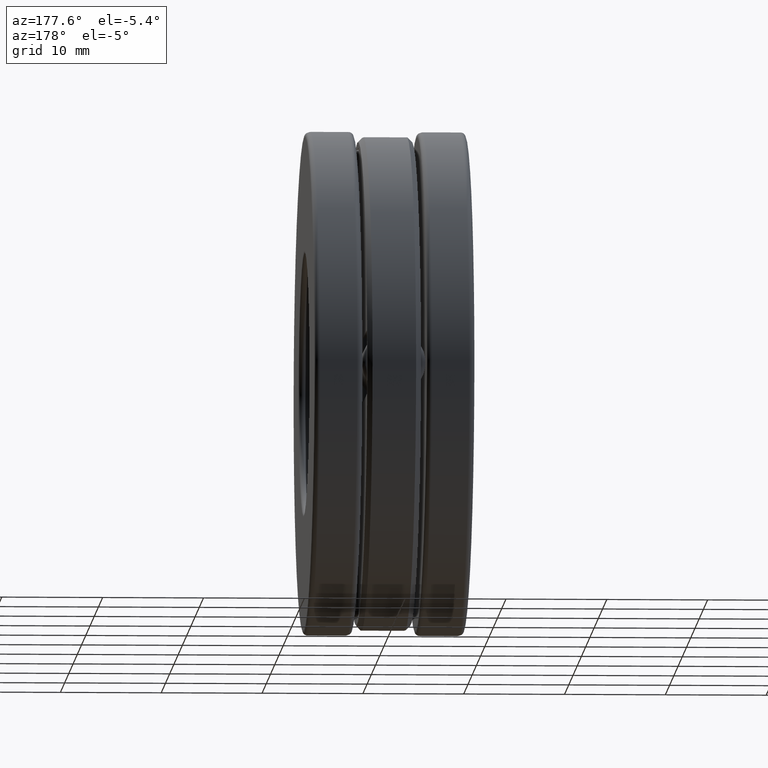
[diagram: clean part render]
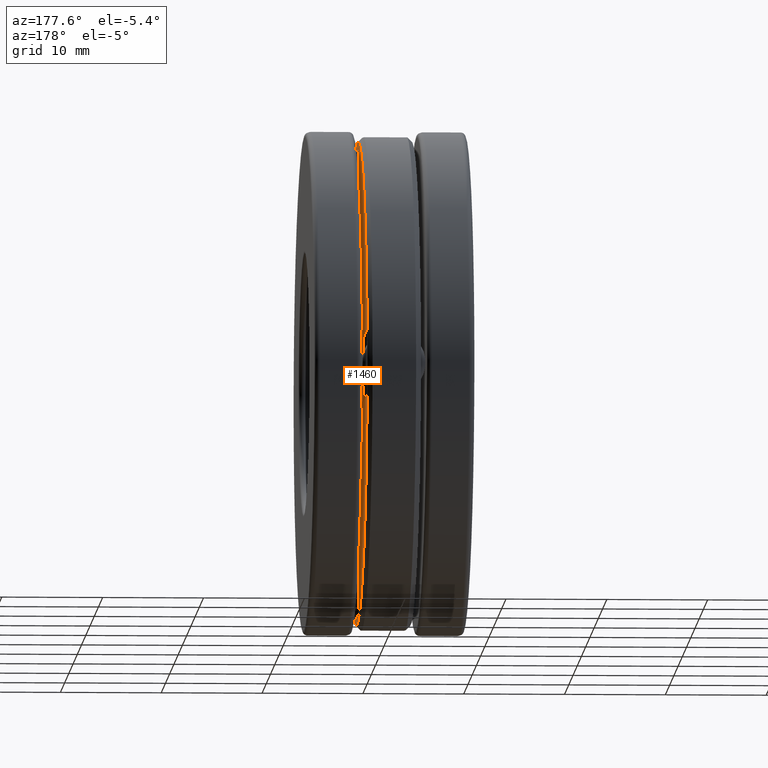
[diagram: same view with one face highlighted and labeled with its STEP entity id]
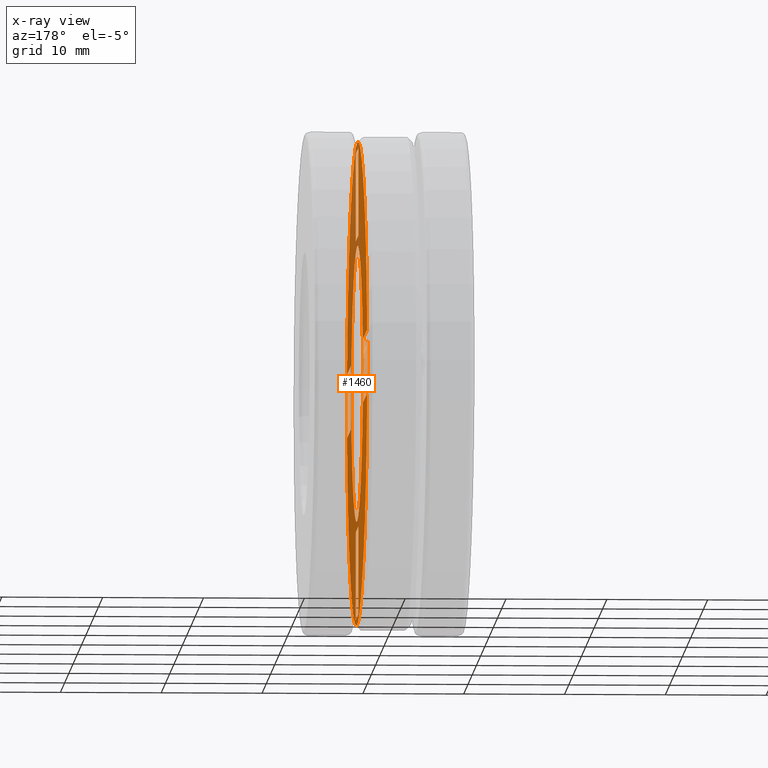
[diagram: x-ray of the same camera — body ghosted, the highlighted face saturated]
A machine part, auxiliary view. The second image highlights one B-rep face of the part: STEP entity #1460.
The next image is the same camera in x-ray: the body ghosted, the highlighted face saturated — about 56% of this face is hidden behind the body in this view.
In plain terms, the highlighted planar face has unit normal (1, 0, 0).
Its self-contained STEP definition (entity closure, byte-faithful):
#11 = EDGE_CURVE ( 'NONE', #571, #751, #199, .T. ) ;
#15 = VECTOR ( 'NONE', #920, 39.37007874015748100 ) ;
#18 = CARTESIAN_POINT ( 'NONE',  ( 0.1050000000000000800, -0.5699999999999999500, -0.1250000000000000300 ) ) ;
#20 = ORIENTED_EDGE ( 'NONE', *, *, #193, .T. ) ;
#21 = CARTESIAN_POINT ( 'NONE',  ( 0.1050000000000000800, -0.5699999999999999500, -0.1250000000000000300 ) ) ;
#22 = VERTEX_POINT ( 'NONE', #1361 ) ;
#24 = EDGE_CURVE ( 'NONE', #751, #121, #519, .T. ) ;
#36 = VECTOR ( 'NONE', #592, 39.37007874015748100 ) ;
#49 = EDGE_CURVE ( 'NONE', #233, #1045, #1307, .T. ) ;
#60 = DIRECTION ( 'NONE',  ( -0.0000000000000000000, 1.000000000000000000, 0.0000000000000000000 ) ) ;
#64 = LINE ( 'NONE', #919, #684 ) ;
#86 = ORIENTED_EDGE ( 'NONE', *, *, #479, .F. ) ;
#101 = DIRECTION ( 'NONE',  ( 0.0000000000000000000, -2.731847993664263200E-016, 1.000000000000000000 ) ) ;
#102 = VERTEX_POINT ( 'NONE', #683 ) ;
#104 = CARTESIAN_POINT ( 'NONE',  ( 0.1050000000000000800, 0.1249999999999980200, 0.5700000000000005100 ) ) ;
#107 = FACE_BOUND ( 'NONE', #1237, .T. ) ;
#108 = CARTESIAN_POINT ( 'NONE',  ( 0.1050000000000000400, 0.9143749999999996000, 0.1250000000000000300 ) ) ;
#109 = VECTOR ( 'NONE', #60, 39.37007874015748100 ) ;
#110 = EDGE_CURVE ( 'NONE', #615, #1254, #1229, .T. ) ;
#121 = VERTEX_POINT ( 'NONE', #899 ) ;
#156 = ORIENTED_EDGE ( 'NONE', *, *, #1025, .T. ) ;
#159 = EDGE_CURVE ( 'NONE', #22, #102, #223, .T. ) ;
#167 = DIRECTION ( 'NONE',  ( 0.0000000000000000000, 0.0000000000000000000, -1.000000000000000000 ) ) ;
#171 = PLANE ( 'NONE',  #881 ) ;
#182 = FACE_BOUND ( 'NONE', #237, .T. ) ;
#193 = EDGE_CURVE ( 'NONE', #571, #1279, #707, .T. ) ;
#199 = LINE ( 'NONE', #468, #36 ) ;
#202 = CIRCLE ( 'NONE', #747, 0.5399999999999999200 ) ;
#216 = CARTESIAN_POINT ( 'NONE',  ( 0.1050000000000000800, 0.1250000000000096000, -0.9143749999999982700 ) ) ;
#220 = VERTEX_POINT ( 'NONE', #773 ) ;
#223 = LINE ( 'NONE', #670, #1382 ) ;
#227 = CARTESIAN_POINT ( 'NONE',  ( 0.1050000000000000400, 3.012874373890890600E-017, -0.1250000000000000600 ) ) ;
#233 = VERTEX_POINT ( 'NONE', #1440 ) ;
#237 = EDGE_LOOP ( 'NONE', ( #1170 ) ) ;
#242 = CARTESIAN_POINT ( 'NONE',  ( 0.1050000000000000800, 0.1250000000000060000, -0.5699999999999987300 ) ) ;
#269 = DIRECTION ( 'NONE',  ( -1.000000000000000000, -0.0000000000000000000, -0.0000000000000000000 ) ) ;
#271 = ORIENTED_EDGE ( 'NONE', *, *, #504, .F. ) ;
#276 = EDGE_CURVE ( 'NONE', #1166, #717, #1111, .T. ) ;
#280 = LINE ( 'NONE', #582, #599 ) ;
#296 = LINE ( 'NONE', #227, #1449 ) ;
#300 = EDGE_CURVE ( 'NONE', #1027, #1166, #1020, .T. ) ;
#343 = CARTESIAN_POINT ( 'NONE',  ( 0.1050000000000000800, -0.5699999999999999500, -0.1250000000000000300 ) ) ;
#352 = LINE ( 'NONE', #216, #538 ) ;
#355 = DIRECTION ( 'NONE',  ( 0.0000000000000000000, 1.000000000000000000, 3.491481338843133000E-015 ) ) ;
#365 = EDGE_CURVE ( 'NONE', #1027, #635, #661, .T. ) ;
#421 = AXIS2_PLACEMENT_3D ( 'NONE', #827, #1169, #940 ) ;
#446 = CARTESIAN_POINT ( 'NONE',  ( 0.1050000000000000400, 0.5699999999999999500, 0.1250000000000000300 ) ) ;
#456 = VECTOR ( 'NONE', #1090, 39.37007874015748100 ) ;
#465 = ORIENTED_EDGE ( 'NONE', *, *, #276, .T. ) ;
#468 = CARTESIAN_POINT ( 'NONE',  ( 0.1050000000000000800, -0.1250000000000020300, 0.5699999999999996200 ) ) ;
#476 = EDGE_CURVE ( 'NONE', #1279, #121, #280, .T. ) ;
#479 = EDGE_CURVE ( 'NONE', #635, #717, #296, .T. ) ;
#487 = CARTESIAN_POINT ( 'NONE',  ( 0.1050000000000000400, 0.5700000000000000600, -0.1250000000000000300 ) ) ;
#488 = VERTEX_POINT ( 'NONE', #672 ) ;
#489 = ORIENTED_EDGE ( 'NONE', *, *, #49, .T. ) ;
#501 = CARTESIAN_POINT ( 'NONE',  ( 0.1050000000000000800, 0.0000000000000000000, 0.5399999999999999200 ) ) ;
#504 = EDGE_CURVE ( 'NONE', #488, #1045, #64, .T. ) ;
#515 = DIRECTION ( 'NONE',  ( 1.000000000000000000, 0.0000000000000000000, 0.0000000000000000000 ) ) ;
#519 = LINE ( 'NONE', #104, #15 ) ;
#530 = ORIENTED_EDGE ( 'NONE', *, *, #300, .T. ) ;
#535 = ORIENTED_EDGE ( 'NONE', *, *, #1323, .F. ) ;
#538 = VECTOR ( 'NONE', #1334, 39.37007874015748100 ) ;
#557 = VECTOR ( 'NONE', #101, 39.37007874015748100 ) ;
#562 = DIRECTION ( 'NONE',  ( 0.0000000000000000000, 1.057360365332302200E-014, -1.000000000000000000 ) ) ;
#564 = DIRECTION ( 'NONE',  ( -0.0000000000000000000, 1.000000000000000000, 9.915963679362131500E-017 ) ) ;
#571 = VERTEX_POINT ( 'NONE', #923 ) ;
#574 = EDGE_CURVE ( 'NONE', #1289, #1289, #202, .T. ) ;
#576 = DIRECTION ( 'NONE',  ( 0.0000000000000000000, 0.0000000000000000000, 1.000000000000000000 ) ) ;
#582 = CARTESIAN_POINT ( 'NONE',  ( 0.1050000000000000800, -0.1250000000000032200, 0.9143749999999991600 ) ) ;
#592 = DIRECTION ( 'NONE',  ( 0.0000000000000000000, 1.000000000000000000, 3.764666138209559900E-015 ) ) ;
#599 = VECTOR ( 'NONE', #355, 39.37007874015748100 ) ;
#604 = ORIENTED_EDGE ( 'NONE', *, *, #708, .T. ) ;
#615 = VERTEX_POINT ( 'NONE', #830 ) ;
#622 = VERTEX_POINT ( 'NONE', #18 ) ;
#624 = EDGE_CURVE ( 'NONE', #220, #220, #769, .T. ) ;
#635 = VERTEX_POINT ( 'NONE', #487 ) ;
#650 = ORIENTED_EDGE ( 'NONE', *, *, #24, .F. ) ;
#661 = LINE ( 'NONE', #1118, #858 ) ;
#670 = CARTESIAN_POINT ( 'NONE',  ( 0.1050000000000000800, 0.1250000000000060000, -0.5699999999999987300 ) ) ;
#672 = CARTESIAN_POINT ( 'NONE',  ( 0.1050000000000000800, -0.5700000000000000600, 0.1250000000000000300 ) ) ;
#683 = CARTESIAN_POINT ( 'NONE',  ( 0.1050000000000000400, 0.1250000000000096000, -0.9143749999999982700 ) ) ;
#684 = VECTOR ( 'NONE', #1472, 39.37007874015748100 ) ;
#685 = CARTESIAN_POINT ( 'NONE',  ( 0.1050000000000000400, -0.1250000000000032200, 0.9143749999999991600 ) ) ;
#707 = LINE ( 'NONE', #1016, #861 ) ;
#708 = EDGE_CURVE ( 'NONE', #622, #233, #1052, .T. ) ;
#717 = VERTEX_POINT ( 'NONE', #1075 ) ;
#720 = FACE_OUTER_BOUND ( 'NONE', #821, .T. ) ;
#722 = VECTOR ( 'NONE', #576, 39.37007874015748100 ) ;
#733 = ORIENTED_EDGE ( 'NONE', *, *, #624, .F. ) ;
#747 = AXIS2_PLACEMENT_3D ( 'NONE', #1043, #269, #1265 ) ;
#751 = VERTEX_POINT ( 'NONE', #1296 ) ;
#769 = CIRCLE ( 'NONE', #421, 0.9443749999999996300 ) ;
#773 = CARTESIAN_POINT ( 'NONE',  ( 0.1050000000000000100, 0.0000000000000000000, 0.9443749999999996300 ) ) ;
#799 = DIRECTION ( 'NONE',  ( 0.0000000000000000000, -1.000000000000000000, -1.074762881589582700E-014 ) ) ;
#805 = VECTOR ( 'NONE', #834, 39.37007874015748100 ) ;
#821 = EDGE_LOOP ( 'NONE', ( #733 ) ) ;
#823 = LINE ( 'NONE', #242, #855 ) ;
#827 = CARTESIAN_POINT ( 'NONE',  ( 0.1050000000000000100, 0.0000000000000000000, 0.0000000000000000000 ) ) ;
#830 = CARTESIAN_POINT ( 'NONE',  ( 0.1050000000000000800, -0.1249999999999940500, -0.5700000000000013900 ) ) ;
#834 = DIRECTION ( 'NONE',  ( 0.0000000000000000000, -1.000000000000000000, 0.0000000000000000000 ) ) ;
#844 = FACE_BOUND ( 'NONE', #979, .T. ) ;
#855 = VECTOR ( 'NONE', #799, 39.37007874015748100 ) ;
#858 = VECTOR ( 'NONE', #878, 39.37007874015748100 ) ;
#861 = VECTOR ( 'NONE', #1004, 39.37007874015748100 ) ;
#865 = CARTESIAN_POINT ( 'NONE',  ( 0.1050000000000000400, 1.773378913970623200E-017, 0.1250000000000000300 ) ) ;
#878 = DIRECTION ( 'NONE',  ( 0.0000000000000000000, 2.731847993664263200E-016, -1.000000000000000000 ) ) ;
#881 = AXIS2_PLACEMENT_3D ( 'NONE', #1407, #515, #167 ) ;
#899 = CARTESIAN_POINT ( 'NONE',  ( 0.1050000000000000800, 0.1249999999999967900, 0.9143750000000000500 ) ) ;
#906 = CARTESIAN_POINT ( 'NONE',  ( 0.1050000000000000800, -0.9143749999999996000, -0.1250000000000000300 ) ) ;
#919 = CARTESIAN_POINT ( 'NONE',  ( 0.1050000000000000800, -0.5700000000000000600, 0.1250000000000000300 ) ) ;
#920 = DIRECTION ( 'NONE',  ( 0.0000000000000000000, -3.590640975636754400E-015, 1.000000000000000000 ) ) ;
#923 = CARTESIAN_POINT ( 'NONE',  ( 0.1050000000000000800, -0.1250000000000020300, 0.5699999999999996200 ) ) ;
#937 = VECTOR ( 'NONE', #562, 39.37007874015748100 ) ;
#940 = DIRECTION ( 'NONE',  ( 0.0000000000000000000, 0.0000000000000000000, 1.000000000000000000 ) ) ;
#979 = EDGE_LOOP ( 'NONE', ( #1121, #156, #1404, #535 ) ) ;
#988 = CARTESIAN_POINT ( 'NONE',  ( 0.1050000000000000400, 0.9143749999999996000, 0.0000000000000000000 ) ) ;
#1004 = DIRECTION ( 'NONE',  ( 0.0000000000000000000, -3.491481338843133000E-015, 1.000000000000000000 ) ) ;
#1012 = CARTESIAN_POINT ( 'NONE',  ( 0.1050000000000000800, -0.1249999999999940500, -0.5700000000000013900 ) ) ;
#1016 = CARTESIAN_POINT ( 'NONE',  ( 0.1050000000000000800, -0.1250000000000020300, 0.5699999999999996200 ) ) ;
#1020 = LINE ( 'NONE', #865, #109 ) ;
#1025 = EDGE_CURVE ( 'NONE', #102, #1254, #352, .T. ) ;
#1027 = VERTEX_POINT ( 'NONE', #446 ) ;
#1043 = CARTESIAN_POINT ( 'NONE',  ( 0.1050000000000000800, 0.0000000000000000000, 0.0000000000000000000 ) ) ;
#1045 = VERTEX_POINT ( 'NONE', #1122 ) ;
#1046 = ORIENTED_EDGE ( 'NONE', *, *, #1056, .F. ) ;
#1052 = LINE ( 'NONE', #21, #805 ) ;
#1056 = EDGE_CURVE ( 'NONE', #622, #488, #1410, .T. ) ;
#1075 = CARTESIAN_POINT ( 'NONE',  ( 0.1050000000000000400, 0.9143749999999996000, -0.1249999999999999900 ) ) ;
#1090 = DIRECTION ( 'NONE',  ( 0.0000000000000000000, 0.0000000000000000000, -1.000000000000000000 ) ) ;
#1111 = LINE ( 'NONE', #988, #456 ) ;
#1118 = CARTESIAN_POINT ( 'NONE',  ( 0.1050000000000000400, 0.5700000000000000600, 1.557153356388630200E-016 ) ) ;
#1121 = ORIENTED_EDGE ( 'NONE', *, *, #159, .T. ) ;
#1122 = CARTESIAN_POINT ( 'NONE',  ( 0.1050000000000000800, -0.9143749999999996000, 0.1249999999999999900 ) ) ;
#1166 = VERTEX_POINT ( 'NONE', #108 ) ;
#1169 = DIRECTION ( 'NONE',  ( -1.000000000000000000, -0.0000000000000000000, -0.0000000000000000000 ) ) ;
#1170 = ORIENTED_EDGE ( 'NONE', *, *, #574, .T. ) ;
#1191 = ORIENTED_EDGE ( 'NONE', *, *, #11, .F. ) ;
#1198 = EDGE_LOOP ( 'NONE', ( #20, #1386, #650, #1191 ) ) ;
#1220 = DIRECTION ( 'NONE',  ( 0.0000000000000000000, 1.047444401652940000E-014, -1.000000000000000000 ) ) ;
#1229 = LINE ( 'NONE', #1012, #937 ) ;
#1237 = EDGE_LOOP ( 'NONE', ( #530, #465, #86, #1353 ) ) ;
#1243 = CARTESIAN_POINT ( 'NONE',  ( 0.1050000000000000800, -0.1249999999999904000, -0.9143750000000009400 ) ) ;
#1254 = VERTEX_POINT ( 'NONE', #1243 ) ;
#1265 = DIRECTION ( 'NONE',  ( 0.0000000000000000000, 0.0000000000000000000, 1.000000000000000000 ) ) ;
#1271 = FACE_BOUND ( 'NONE', #1388, .T. ) ;
#1279 = VERTEX_POINT ( 'NONE', #685 ) ;
#1289 = VERTEX_POINT ( 'NONE', #501 ) ;
#1296 = CARTESIAN_POINT ( 'NONE',  ( 0.1050000000000000800, 0.1249999999999980200, 0.5700000000000005100 ) ) ;
#1307 = LINE ( 'NONE', #906, #722 ) ;
#1323 = EDGE_CURVE ( 'NONE', #22, #615, #823, .T. ) ;
#1334 = DIRECTION ( 'NONE',  ( 0.0000000000000000000, -1.000000000000000000, -1.047444401652940000E-014 ) ) ;
#1353 = ORIENTED_EDGE ( 'NONE', *, *, #365, .F. ) ;
#1361 = CARTESIAN_POINT ( 'NONE',  ( 0.1050000000000000800, 0.1250000000000060000, -0.5699999999999987300 ) ) ;
#1382 = VECTOR ( 'NONE', #1220, 39.37007874015748100 ) ;
#1386 = ORIENTED_EDGE ( 'NONE', *, *, #476, .T. ) ;
#1388 = EDGE_LOOP ( 'NONE', ( #604, #489, #271, #1046 ) ) ;
#1398 = FACE_BOUND ( 'NONE', #1198, .T. ) ;
#1404 = ORIENTED_EDGE ( 'NONE', *, *, #110, .F. ) ;
#1407 = CARTESIAN_POINT ( 'NONE',  ( 0.1050000000000000400, 1.773378913970623200E-017, 0.0000000000000000000 ) ) ;
#1410 = LINE ( 'NONE', #343, #557 ) ;
#1440 = CARTESIAN_POINT ( 'NONE',  ( 0.1050000000000000400, -0.9143749999999996000, -0.1250000000000000300 ) ) ;
#1449 = VECTOR ( 'NONE', #564, 39.37007874015748100 ) ;
#1460 = ADVANCED_FACE ( 'NONE', ( #182, #720, #107, #844, #1271, #1398 ), #171, .T. ) ;
#1472 = DIRECTION ( 'NONE',  ( 0.0000000000000000000, -1.000000000000000000, -9.915963679362130300E-017 ) ) ;